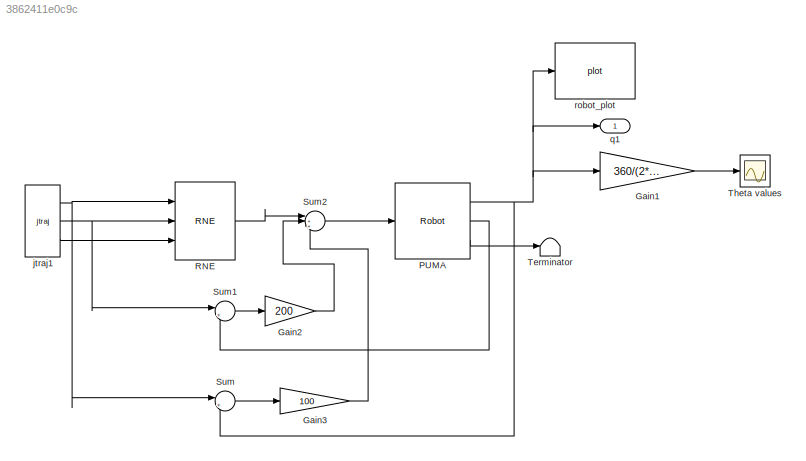
MODEL slx_3862411e0c9c
KIND model
CONFIG AbsTol = auto
CONFIG EnableMultiTasking = off
CONFIG FixedStep = auto
CONFIG MaxStep = auto
CONFIG MinStep = auto
CONFIG RelTol = 1e-3
CONFIG SampleTimeConstraint = Unconstrained
CONFIG SolverName = VariableStepAuto
CONFIG StartTime = 0.0
CONFIG StopTime = 2
BLOCK [Gain] Gain1
  Gain = 360/(2*pi)
BLOCK [Gain] Gain2
  Gain = 200
BLOCK [Gain] Gain3
  Gain = 100
BLOCK [Reference] PUMA  REF=roblocks/Arm/Robot  (lib defined in mdl_2a292b13c81b, mdl_69400f8cfe22, +12 more)
  Ports = [1, 3]
  SourceBlock = roblocks/Arm/Robot
BLOCK [Reference] RNE  REF=roblocks/Arm/RNE  (lib defined in mdl_2a292b13c81b, mdl_69400f8cfe22, +12 more)
  Ports = [3, 1]
  SourceBlock = roblocks/Arm/RNE
BLOCK [Sum] Sum
  Inputs = |+-
  Ports = [2, 1]
BLOCK [Sum] Sum1
  Inputs = |+-
  Ports = [2, 1]
BLOCK [Sum] Sum2
  Inputs = |+++
  Ports = [3, 1]
BLOCK [Terminator] Terminator
BLOCK [Scope] Theta values
  Floating = off
  NumInputPorts = 1
  Ports = [1]
  ScopeSpecificationString = Simulink.scopes.TimeScopeBlockCfg('CurrentConfiguration', extmgr.ConfigurationSet(extmgr.Configuration('Core','General UI',true),extmgr.Configuration('Core','Source UI',true),extmgr.Configuration('Sources','WiredSimulink',true,'DataLoggingVariableName','ScopeData1'),extmgr.Configuration('Visuals','Time Domain',true,'SerializedDisplays',{struct('MinYLimReal','-61.84413','MaxYLimReal','106.82168','Y...<+1471ch>
BLOCK [Reference] jtraj1  REF=roblocks/Toolbox/jtraj  (lib defined in mdl_2a292b13c81b, mdl_69400f8cfe22, +12 more)
  Ports = [0, 3]
  SourceBlock = roblocks/Toolbox/jtraj
BLOCK [Outport] q1
BLOCK [Reference] robot_plot  REF=roblocks/Arm/plot  (lib defined in mdl_2a292b13c81b, mdl_69400f8cfe22, +12 more)
  Ports = [1]
  SourceBlock = roblocks/Arm/plot
LINE Gain1:1 -> Theta values:1
LINE Gain2:1 -> Sum2:2
LINE Gain3:1 -> Sum2:3
NET PUMA:1 -> Gain1:1, Sum:2, q1:1, robot_plot:1
LINE PUMA:2 -> Sum1:2
LINE PUMA:3 -> Terminator:1
LINE RNE:1 -> Sum2:1
LINE Sum1:1 -> Gain2:1
LINE Sum2:1 -> PUMA:1
LINE Sum:1 -> Gain3:1
NET jtraj1:1 -> RNE:1, Sum:1
NET jtraj1:2 -> RNE:2, Sum1:1
LINE jtraj1:3 -> RNE:3
note: NET lines group one-source signal fan-out (src -> all destinations, sorted); 1:1 wires keep LINE
